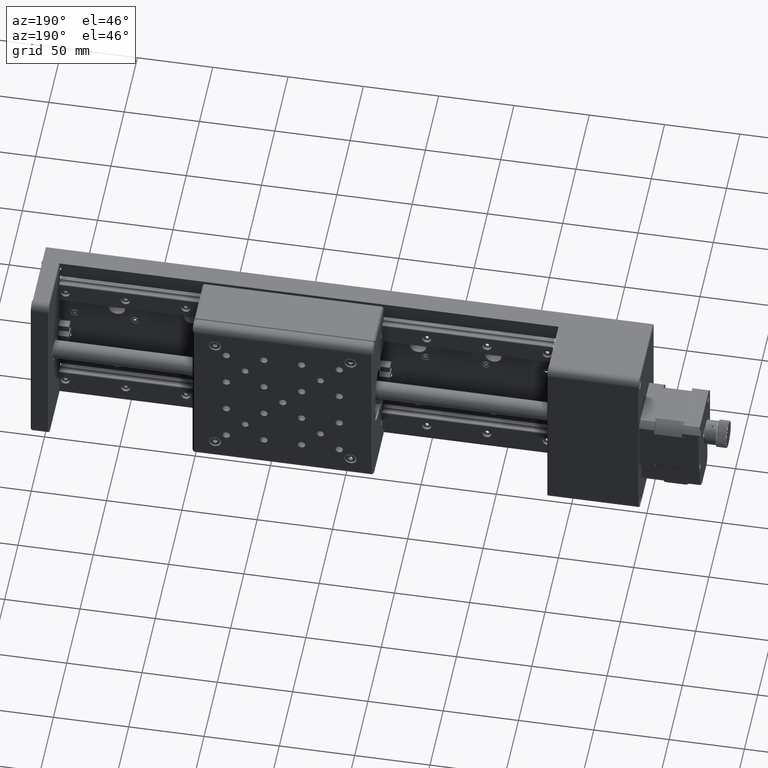
[diagram: clean part render]
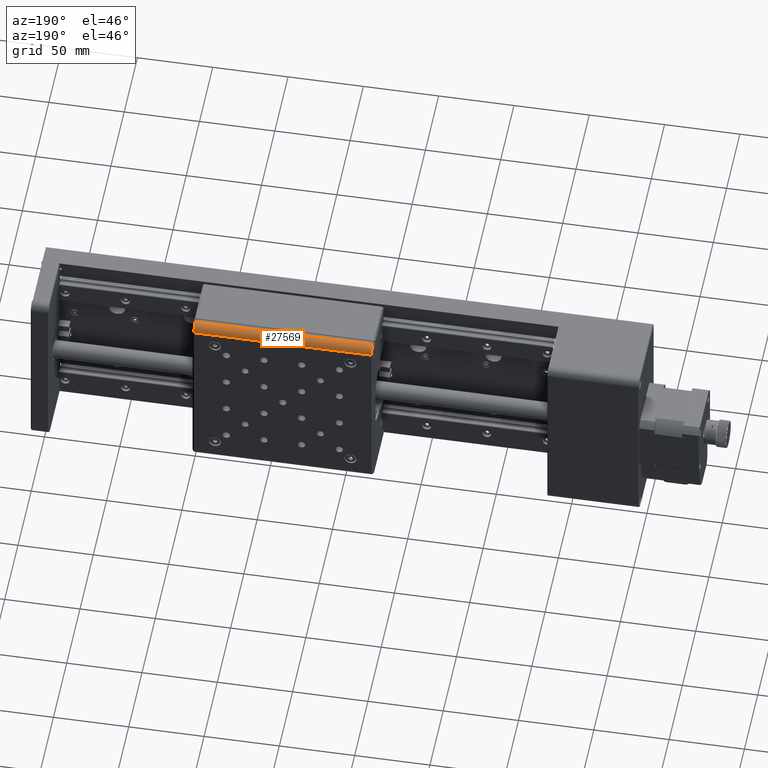
[diagram: same view with one face highlighted and labeled with its STEP entity id]
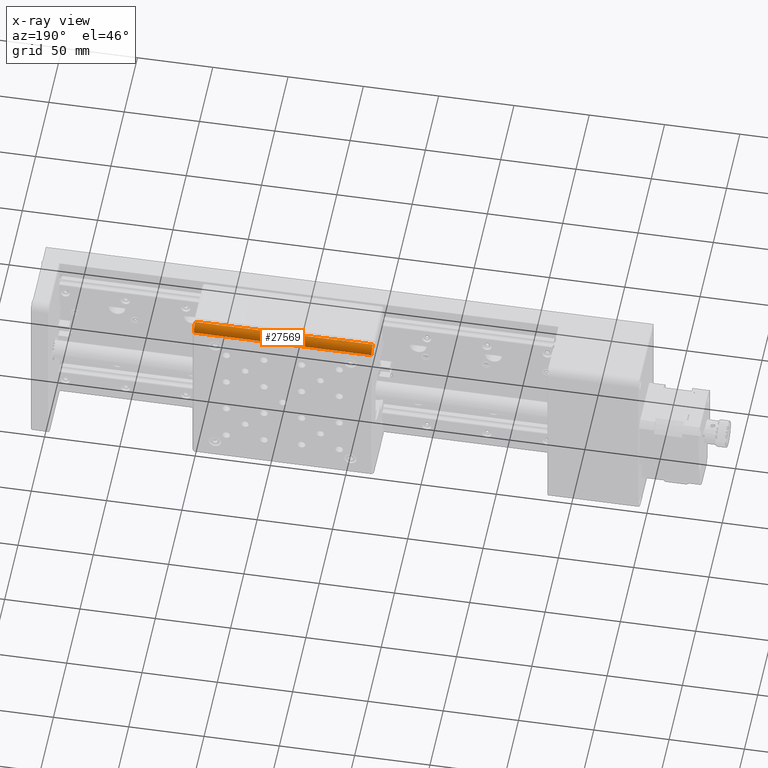
[diagram: x-ray of the same camera — body ghosted, the highlighted face saturated]
A machine part, auxiliary view. The second image highlights one B-rep face of the part: STEP entity #27569.
The next image is the same camera in x-ray: the body ghosted, the highlighted face saturated — about 0% of this face is hidden behind the body in this view.
In plain terms, the highlighted cylindrical surface (edge-blend (fillet) strip) has radius 5 mm, axis along (1, 0, -0).
Its self-contained STEP definition (entity closure, byte-faithful):
#2072 = DIRECTION ( 'NONE',  ( -1.000000000000000000, -4.387762434446926700E-016, 1.665334536937739500E-016 ) ) ;
#2268 = DIRECTION ( 'NONE',  ( 0.0000000000000000000, -1.000000000000000000, 0.0000000000000000000 ) ) ;
#3630 = LINE ( 'NONE', #34892, #44853 ) ;
#4142 = CARTESIAN_POINT ( 'NONE',  ( -959.2312375733388300, 51.00000000000616800, -294.9134800466773100 ) ) ;
#4553 = EDGE_LOOP ( 'NONE', ( #21405, #35438, #41995, #30832 ) ) ;
#7599 = CARTESIAN_POINT ( 'NONE',  ( -900.2312375733388300, 51.00000000000619600, -294.9134800466773100 ) ) ;
#10636 = VECTOR ( 'NONE', #2072, 1000.000000000000000 ) ;
#11207 = DIRECTION ( 'NONE',  ( 1.000000000000000000, 4.387762434446926700E-016, -1.665334536937739500E-016 ) ) ;
#11208 = DIRECTION ( 'NONE',  ( 1.000000000000000000, 4.387762434446926700E-016, -1.665334536937739500E-016 ) ) ;
#11863 = LINE ( 'NONE', #33175, #10636 ) ;
#11963 = AXIS2_PLACEMENT_3D ( 'NONE', #22517, #25765, #2268 ) ;
#14038 = VERTEX_POINT ( 'NONE', #28736 ) ;
#14607 = CIRCLE ( 'NONE', #16052, 4.999999999999997300 ) ;
#15083 = AXIS2_PLACEMENT_3D ( 'NONE', #4142, #11208, #42807 ) ;
#16052 = AXIS2_PLACEMENT_3D ( 'NONE', #7599, #38736, #50391 ) ;
#16310 = EDGE_CURVE ( 'NONE', #33820, #14038, #3630, .T. ) ;
#16398 = CYLINDRICAL_SURFACE ( 'NONE', #15083, 4.999999999999997300 ) ;
#16834 = CARTESIAN_POINT ( 'NONE',  ( -900.2312375733388300, 51.00000000000619600, -289.9134800466773100 ) ) ;
#19577 = CARTESIAN_POINT ( 'NONE',  ( -1018.231237573338800, 51.00000000000614600, -289.9134800466773100 ) ) ;
#21405 = ORIENTED_EDGE ( 'NONE', *, *, #40567, .F. ) ;
#22517 = CARTESIAN_POINT ( 'NONE',  ( -1018.231237573338800, 51.00000000000613900, -294.9134800466773100 ) ) ;
#24489 = CIRCLE ( 'NONE', #11963, 4.999999999999997300 ) ;
#25765 = DIRECTION ( 'NONE',  ( 1.000000000000000000, 4.387762434446926700E-016, -1.665334536937739500E-016 ) ) ;
#27117 = EDGE_CURVE ( 'NONE', #48130, #14038, #14607, .T. ) ;
#27569 = ADVANCED_FACE ( 'NONE', ( #47799 ), #16398, .T. ) ;
#28736 = CARTESIAN_POINT ( 'NONE',  ( -900.2312375733388300, 56.00000000000618900, -294.9134800466773100 ) ) ;
#30832 = ORIENTED_EDGE ( 'NONE', *, *, #50157, .T. ) ;
#33175 = CARTESIAN_POINT ( 'NONE',  ( -899.2312375733388300, 51.00000000000620300, -289.9134800466773100 ) ) ;
#33820 = VERTEX_POINT ( 'NONE', #41651 ) ;
#34892 = CARTESIAN_POINT ( 'NONE',  ( -959.2312375733388300, 56.00000000000616000, -294.9134800466773100 ) ) ;
#35438 = ORIENTED_EDGE ( 'NONE', *, *, #27117, .T. ) ;
#38736 = DIRECTION ( 'NONE',  ( -1.000000000000000000, -4.387762434446926700E-016, 1.665334536937739500E-016 ) ) ;
#40567 = EDGE_CURVE ( 'NONE', #48130, #46092, #11863, .T. ) ;
#41651 = CARTESIAN_POINT ( 'NONE',  ( -1018.231237573338800, 56.00000000000613900, -294.9134800466773100 ) ) ;
#41995 = ORIENTED_EDGE ( 'NONE', *, *, #16310, .F. ) ;
#42807 = DIRECTION ( 'NONE',  ( 0.0000000000000000000, -1.000000000000000000, 0.0000000000000000000 ) ) ;
#44853 = VECTOR ( 'NONE', #11207, 1000.000000000000000 ) ;
#46092 = VERTEX_POINT ( 'NONE', #19577 ) ;
#47799 = FACE_OUTER_BOUND ( 'NONE', #4553, .T. ) ;
#48130 = VERTEX_POINT ( 'NONE', #16834 ) ;
#50157 = EDGE_CURVE ( 'NONE', #33820, #46092, #24489, .T. ) ;
#50391 = DIRECTION ( 'NONE',  ( 0.0000000000000000000, 1.000000000000000000, 0.0000000000000000000 ) ) ;